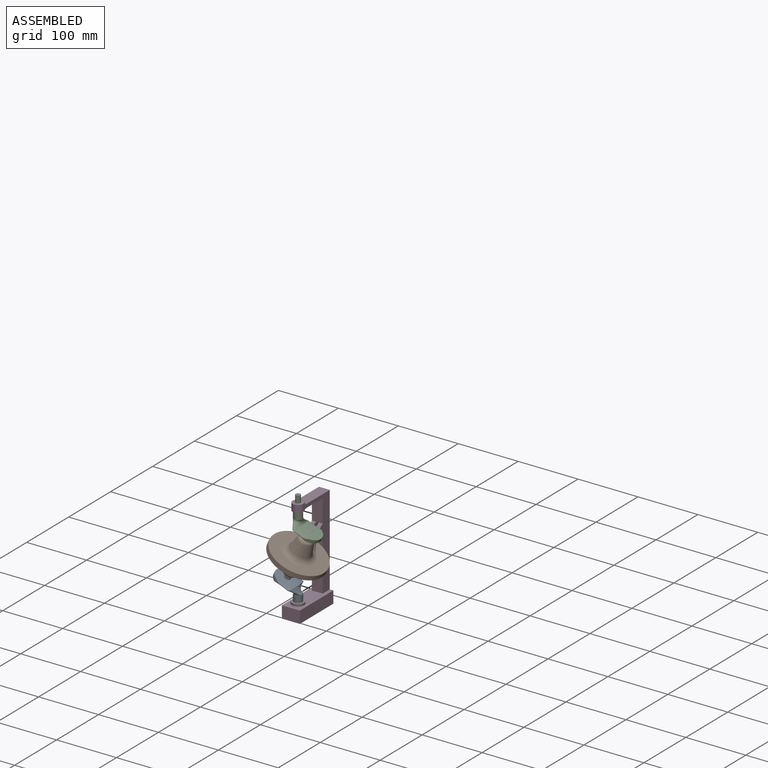
[diagram: assembled view]
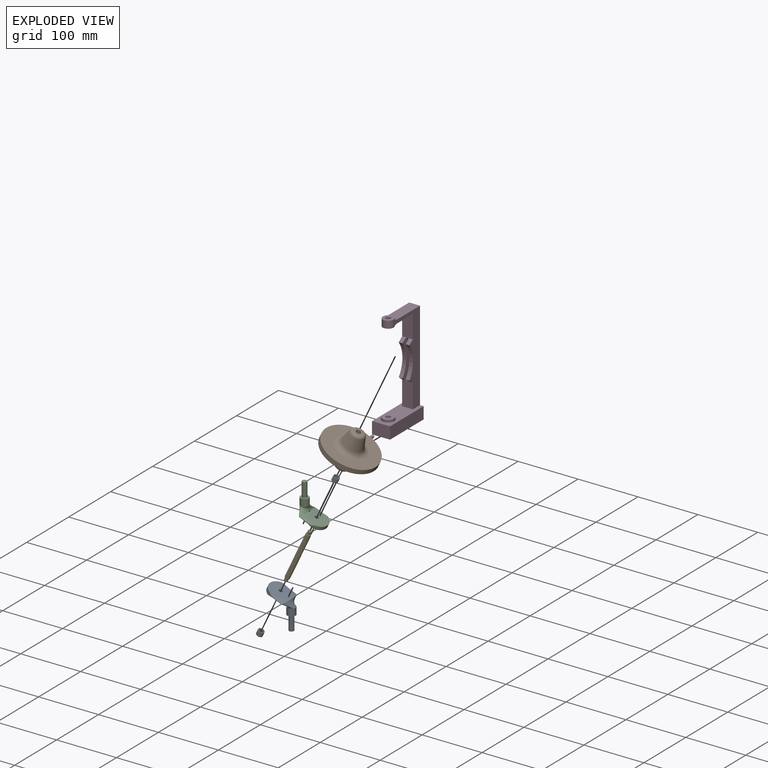
[diagram: exploded view]
GUIDED TOUR — MATED ASSEMBLY (Onshape document 5cff3179f80a41fd244dbe25, AutoMate assembly 5cff3179f80a41fd244dbe25_552df3ba4b13eefe824be8b3_bae44dd0b8cb0038fdf801b5_default)

This assembly has 7 components, labeled P0..P6 below (a component is one placed occurrence of a part; the same part can appear more than once), held together by 6 mates. A mate is a constraint between two components; its type names the relative motion it leaves free:
  REVOLUTE — leaves rotation about the listed axis free (a hinge).
Axis/direction vectors are unit vectors and 'through' points are millimeter coordinates, both in the assembly's world frame.

MATES
  1. REVOLUTE "Animate 720": P0 <-> P3, axis (0.000, 0.000, -1.000) through (23.51, -0.99, -49.84) mm
  2. REVOLUTE "Revolute 5": P5 <-> P4, axis (0.422, 0.015, 0.906) through (40.83, -0.37, 55.65) mm
  3. REVOLUTE "Revolute 2": P4 <-> P2, axis (0.422, 0.015, 0.906) through (40.83, -0.37, 55.65) mm
  4. REVOLUTE "Revolute 4": P6 <-> P4, axis (-0.422, -0.015, -0.906) through (6.28, -1.60, -18.49) mm
  5. REVOLUTE "Revolute 1": P4 <-> P0, axis (-0.422, -0.015, -0.906) through (6.28, -1.60, -18.49) mm
  6. REVOLUTE "Revolute 6": P1 <-> P6, axis (-0.422, -0.015, -0.906) through (9.57, -1.48, -11.42) mm

ASSEMBLY ORDER
  1. P4 — the base component [order heuristic]
  2. P1 — core [order heuristic]
  3. P6 [order verified]
  4. P5 [order verified]
  5. P3 — core [order heuristic]
  6. P0 — core [order heuristic]
  7. P2 — core [order heuristic]
Order-tag legend:
  [order verified] — this step's position reverses a verified removal order: the component was checked to insert without passing through the ones already placed.
  [order heuristic] — the first 5 components form the assembly's core: parts whose collision-free extraction could not be verified, listed in mate-graph order.

Of the 7 components, 3 carry the full construction recipe — the FeatureScript program that regenerates the part's solid from scratch; the rest are supplied as boundary geometry only.
Each toured component is shown spotlighted twice — in the assembled view, then in the exploded view, where a leader line traces a displaced component back to its assembled socket (saturated green if recipe-attached, orange if geometry-only; every other component desaturated gray) — followed by its recipe or geometry summary and the mates that hold it.
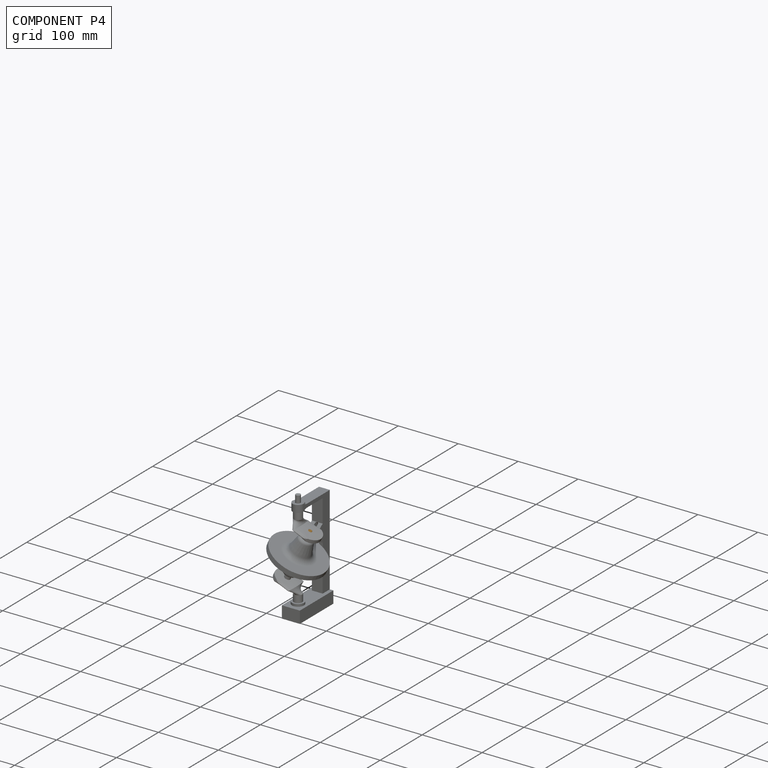
[diagram: component P4 — assembled]
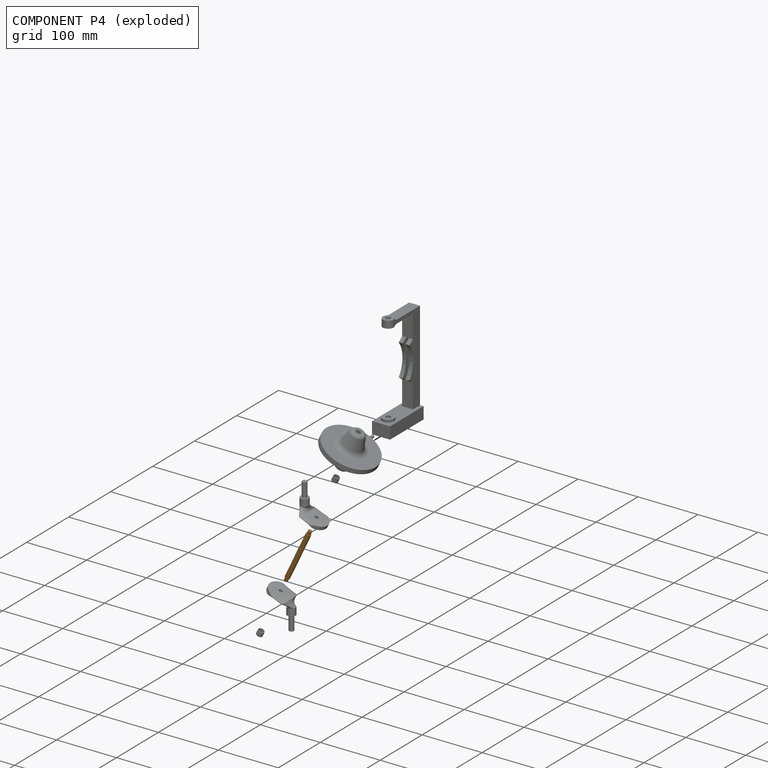
[diagram: component P4 — exploded]
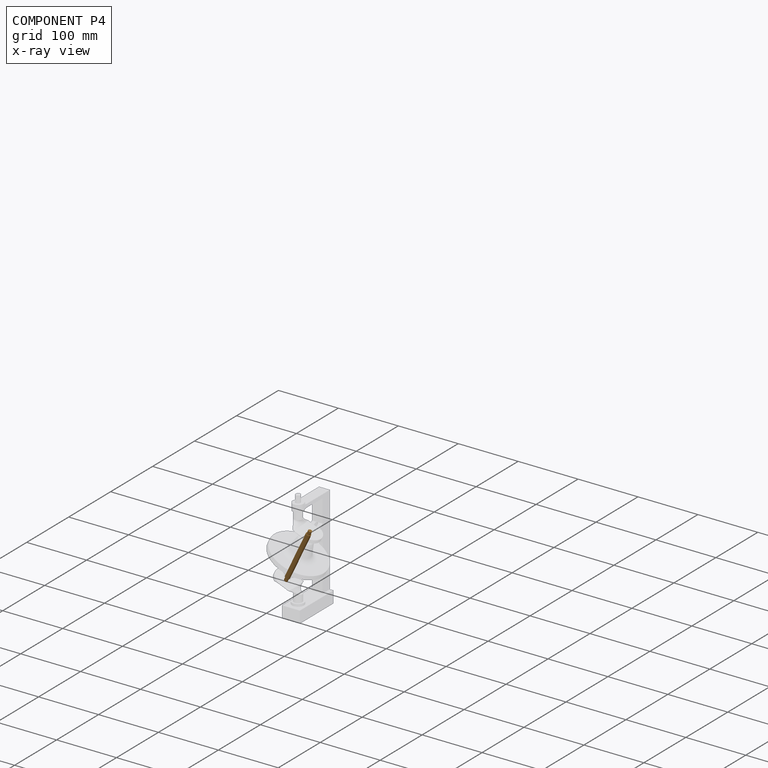
[diagram: component P4 — x-ray view]
COMPONENT P4 — geometry summary (no construction recipe available for this part):
  bounding box: 94.8 x 8.0 x 8.0 mm
  B-rep topology: 1 solid, 9 faces, 30 edges
  volume: 4475 mm^3 (74% of its bounding box)
  symmetry: 2-fold rotationally symmetric about the x axis; revolution-symmetric about the y axis through its bounding-box center; 2-fold rotationally symmetric about the z axis; mirror-symmetric across its x mid-plane, y mid-plane, z mid-plane
Held by: REVOLUTE mate "Revolute 5" to P5; REVOLUTE mate "Revolute 2" to P2; REVOLUTE mate "Revolute 4" to P6; REVOLUTE mate "Revolute 1" to P0.
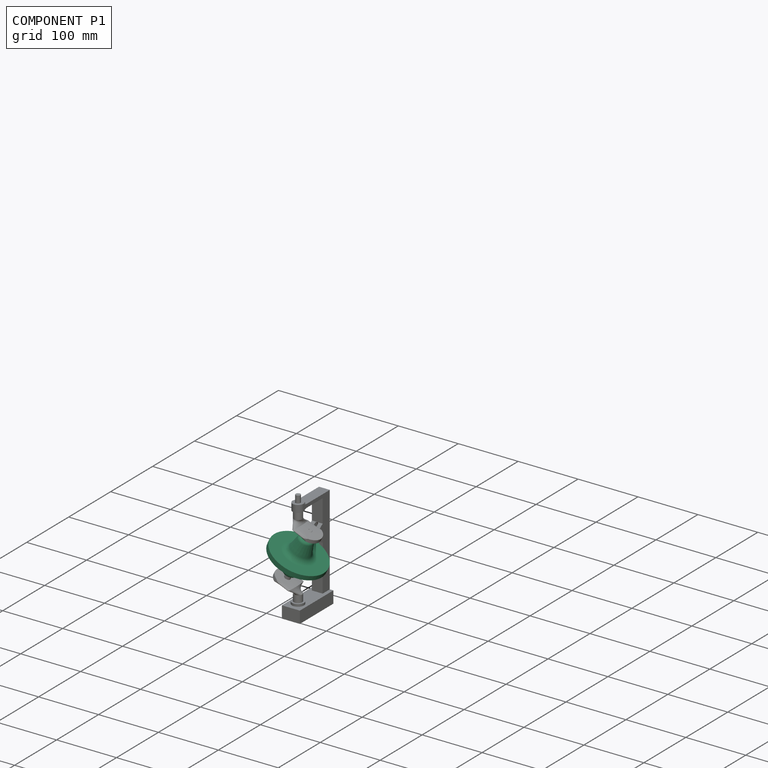
[diagram: component P1 — assembled]
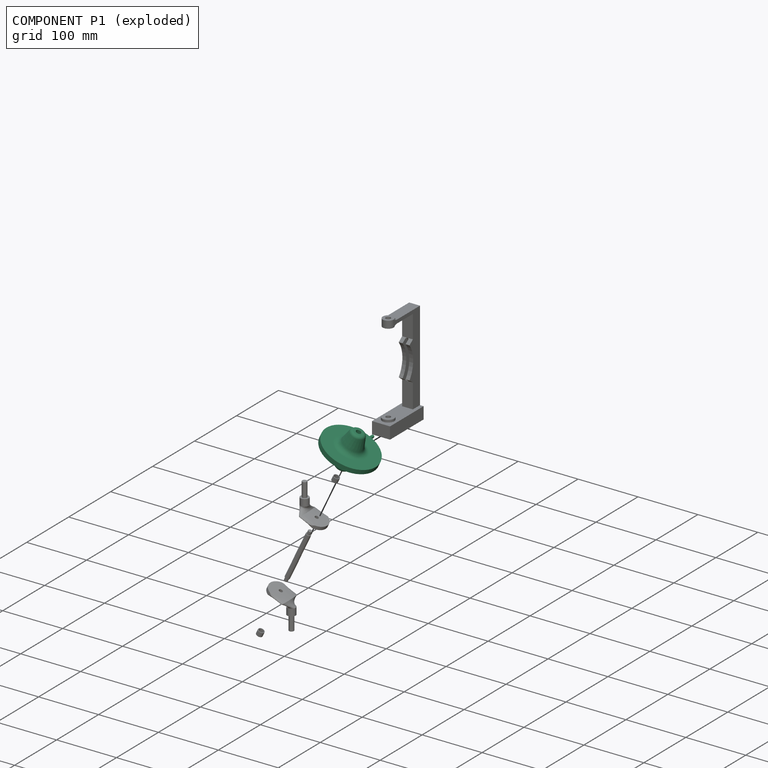
[diagram: component P1 — exploded]
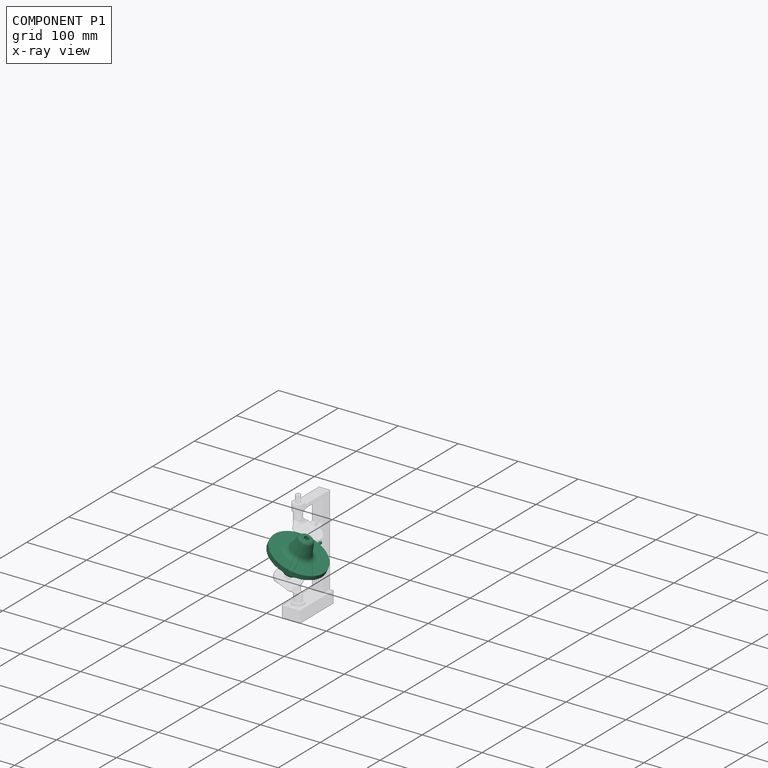
[diagram: component P1 — x-ray view]
COMPONENT P1 — recipe-attached (CADFS 00316515, mesh-verified: the recipe's output STEP matches this component's geometry to below the mesh-comparison resolution (tessellation chordal tolerance ~0.226 mm)).
Held by: REVOLUTE mate "Revolute 6" to P6.
Construction recipe (FeatureScript — the CAD program that rebuilds this solid; sketch coordinates are in the units given by the * unit suffixes, e.g. mm):

FeatureScript 1511;
import(path : "onshape/std/geometry.fs", version : "1511.0");
import(path : "onshape/std/common.fs", version : "1511.0");
const mm = millimeter;
const VERTEX = EntityType.VERTEX;
const EDGE = EntityType.EDGE;
const FACE = EntityType.FACE;
const BODY = EntityType.BODY;
function v(x, y){return vector(x, y);}
function OD(order){return orderDisambiguation(order);}
function OSD(set){return originalSetDisambiguation(set);}
function TD(topology){return topologyDisambiguation(topology);}
function TDD(query){return trueDependencyDisambiguation(query);}
function sQuery(a, b, c) {return sketchEntityQuery(a, b, c);}

annotation { "Feature Type Name" : "Feature", "Feature Type Description" : "" }
export const myFeature = defineFeature(function(context is Context, id is Id, definition is map)
    precondition{}
    {
        {
            var Q0;
            Q0=qCreatedBy(makeId("Right.planeOp"),FACE);
            var sketch = newSketch(context, id + "F0", { "sketchPlane" : qUnion([Q0])});
            skLineSegment(sketch, "E0", {"start": v(-44.32, 0) * mm, "end": v(43.47, 0) * mm, "construction": true});
            skLineSegment(sketch, "E1", {"start": v(0, 43.68) * mm, "end": v(0, -43.47) * mm, "construction": true});
            skLineSegment(sketch, "E2", {"start": v(-45, 0) * mm, "end": v(-45, 4) * mm});
            skLineSegment(sketch, "E3", {"start": v(-45, 4) * mm, "end": v(-26.5, 4) * mm});
            skLineSegment(sketch, "E4", {"start": v(-12, 29.5) * mm, "end": v(-16.84, 11.41) * mm});
            skPoint(sketch, "E5.visualSharp", {"position": v(-18.82, 4) * mm});
            skArc(sketch, "E5.filletArc", {"start": v(-26.5, 4) * mm, "mid": v(-20.4, 6.07) * mm, "end": v(-16.84, 11.41) * mm});
            skPoint(sketch, "E6.visualSharp", {"position": v(-11, 33.2) * mm});
            skArc(sketch, "E6.filletArc", {"start": v(-7.16, 33.2) * mm, "mid": v(-10.2, 32.17) * mm, "end": v(-12, 29.5) * mm});
            skLineSegment(sketch, "E7", {"start": v(-7.16, 33.2) * mm, "end": v(-4, 33.2) * mm});
            skLineSegment(sketch, "E8.MirrorCS", {"start": v(-7.16, -33.2) * mm, "end": v(-4, -33.2) * mm});
            skArc(sketch, "E9.MirrorCS", {"start": v(-7.16, -33.2) * mm, "mid": v(-10.2, -32.17) * mm, "end": v(-12, -29.5) * mm});
            skLineSegment(sketch, "E10.MirrorCS", {"start": v(-12, -29.5) * mm, "end": v(-16.84, -11.41) * mm});
            skArc(sketch, "E11.MirrorCS", {"start": v(-26.5, -4) * mm, "mid": v(-20.4, -6.07) * mm, "end": v(-16.84, -11.41) * mm});
            skLineSegment(sketch, "E12.MirrorCS", {"start": v(-45, -4) * mm, "end": v(-26.5, -4) * mm});
            skLineSegment(sketch, "E13.MirrorCS", {"start": v(-45, 0) * mm, "end": v(-45, -4) * mm});
            skLineSegment(sketch, "E14", {"start": v(-4, 33.2) * mm, "end": v(-4, -33.2) * mm});
            skSolve(sketch);
        }
        {
            var Q0;
            Q0=makeQuery(id+"F0.imprint","IMPRINT",FACE,{"disambiguationData":[TD([[makeQuery(id+"F0.imprint","IMPRINT",EDGE,{"derivedFrom":sQuery(id+"F0.wireOp",EDGE,"E2")}),-1.0]])]});
            var Q1;
            Q1=sQuery(id+"F0.wireOp",EDGE,"E1");
            revolve(context, id + "F1", {"entities" : qUnion([Q0]), "axis" : qUnion([Q1]), "revolveType" : RevolveType.FULL});
        }
        {
            var Q0;
            Q0=qCreatedBy(makeId("Right.planeOp"),FACE);
            var sketch = newSketch(context, id + "F2", { "sketchPlane" : qUnion([Q0])});
            skLineSegment(sketch, "E15.bottom", {"start": v(40.3, 2.5) * mm, "end": v(56, 2.5) * mm});
            skLineSegment(sketch, "E15.top", {"start": v(40.3, 0) * mm, "end": v(56, 0) * mm});
            skLineSegment(sketch, "E15.left", {"start": v(40.3, 2.5) * mm, "end": v(40.3, 0) * mm});
            skLineSegment(sketch, "E15.right", {"start": v(56, 2.5) * mm, "end": v(56, 0) * mm});
            skSolve(sketch);
        }
        {
            var Q0;
            Q0=makeQuery(id+"F2.imprint","IMPRINT",FACE,{"disambiguationData":[TD([[makeQuery(id+"F2.imprint","IMPRINT",EDGE,{"derivedFrom":sQuery(id+"F2.wireOp",EDGE,"E15.bottom")}),-1.0]])]});
            var Q1;
            Q1=sQuery(id+"F2.wireOp",EDGE,"E15.top");
            revolve(context, id + "F3", {"operationType" : NewBodyOperationType.ADD, "entities" : qUnion([Q0]), "axis" : qUnion([Q1]), "revolveType" : RevolveType.FULL});
        }
        {
            var Q0;
            Q0=makeQuery(id+"F3.opRevolve","SWEPT_EDGE",EDGE,{"disambiguationData":[OSD([sQuery(id+"F2.wireOp",EDGE,"E15.bottom"),sQuery(id+"F2.wireOp",EDGE,"E15.right")])]});
            fillet(context, id + "F4", {"entities" : qUnion([Q0]), "radius" : 2.5 * mm, "tangentPropagation" : true, "allowEdgeOverflow" : false});
        }
    });
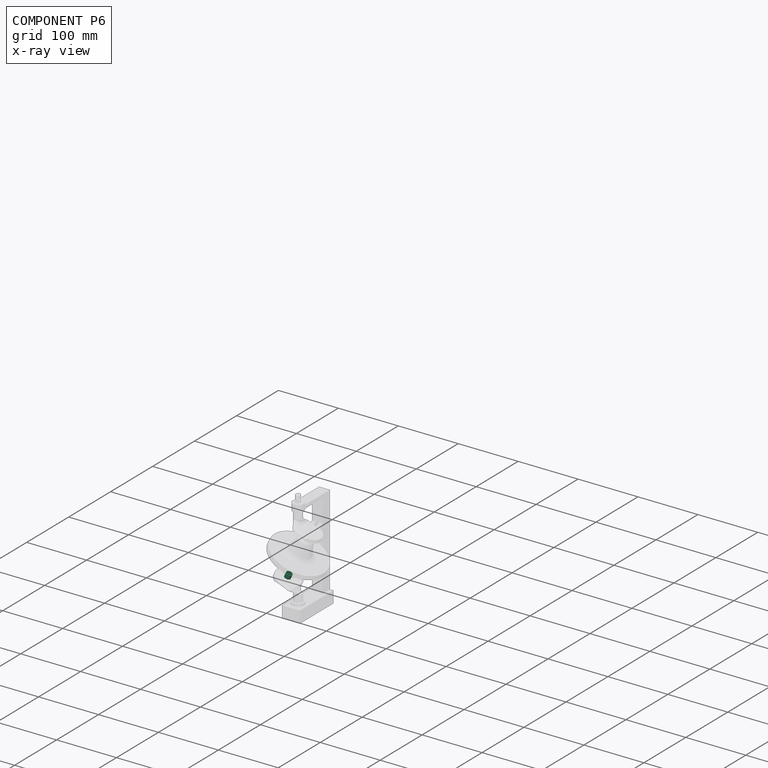
[diagram: component P6 — x-ray view]
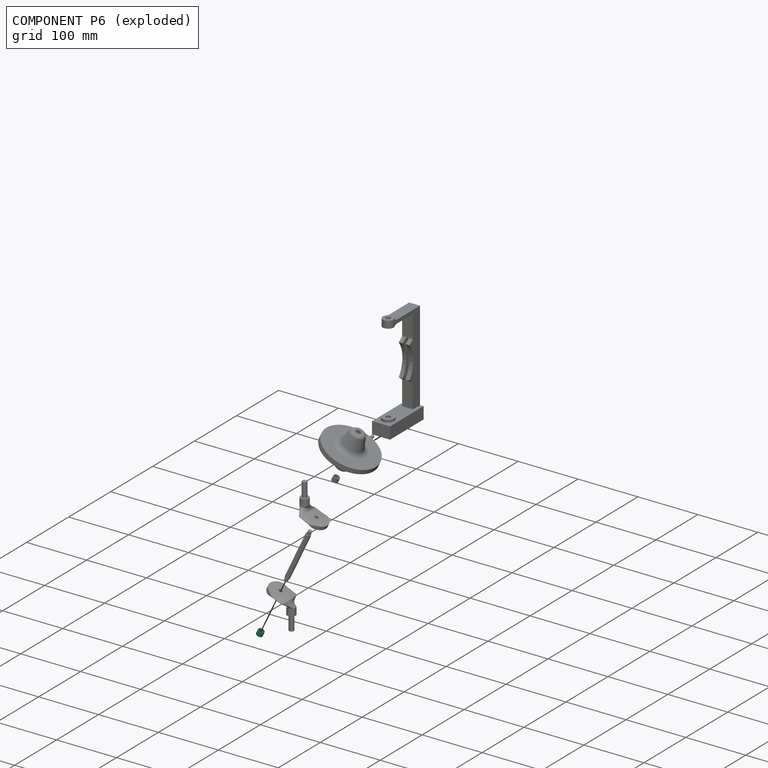
[diagram: component P6 — exploded]
COMPONENT P6 — same part as P5 (CADFS 00316518); its construction recipe is shown at P5.
Held by: REVOLUTE mate "Revolute 4" to P4; REVOLUTE mate "Revolute 6" to P1.
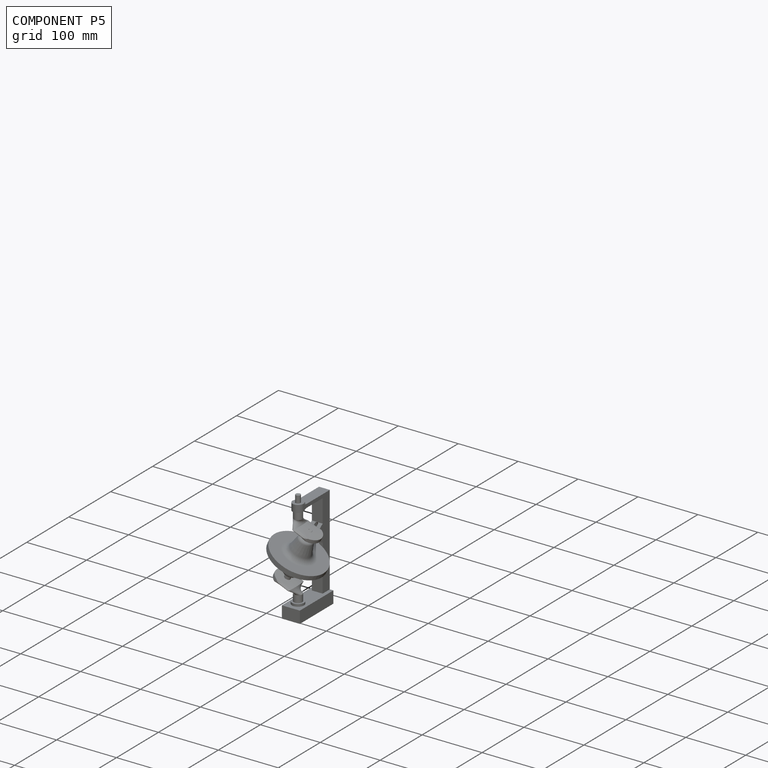
[diagram: component P5 — assembled]
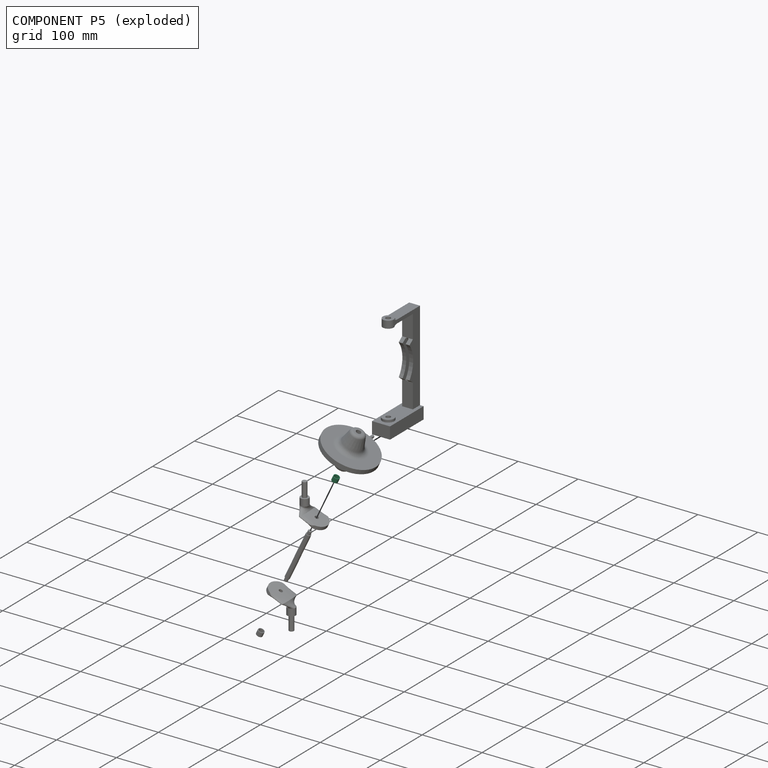
[diagram: component P5 — exploded]
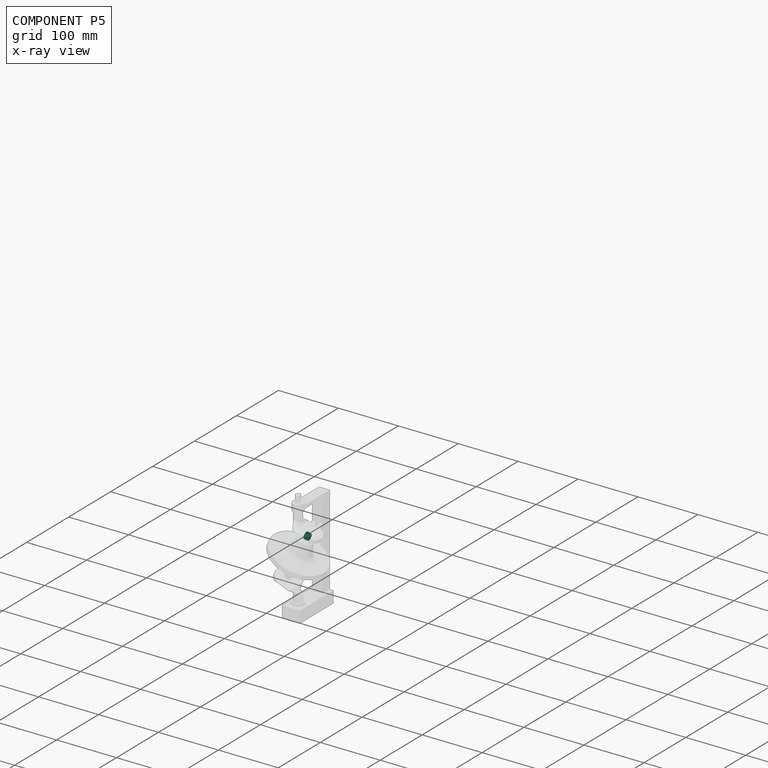
[diagram: component P5 — x-ray view]
COMPONENT P5 — recipe-attached (CADFS 00316518, mesh-verified: the recipe's output STEP matches this component's geometry to below the mesh-comparison resolution (tessellation chordal tolerance ~0.0242 mm)).
Held by: REVOLUTE mate "Revolute 5" to P4.
Construction recipe (FeatureScript — the CAD program that rebuilds this solid; sketch coordinates are in the units given by the * unit suffixes, e.g. mm):

FeatureScript 1511;
import(path : "onshape/std/geometry.fs", version : "1511.0");
import(path : "onshape/std/common.fs", version : "1511.0");
const mm = millimeter;
const VERTEX = EntityType.VERTEX;
const EDGE = EntityType.EDGE;
const FACE = EntityType.FACE;
const BODY = EntityType.BODY;
function v(x, y){return vector(x, y);}
function OD(order){return orderDisambiguation(order);}
function OSD(set){return originalSetDisambiguation(set);}
function TD(topology){return topologyDisambiguation(topology);}
function TDD(query){return trueDependencyDisambiguation(query);}
function sQuery(a, b, c) {return sketchEntityQuery(a, b, c);}

annotation { "Feature Type Name" : "Feature", "Feature Type Description" : "" }
export const myFeature = defineFeature(function(context is Context, id is Id, definition is map)
    precondition{}
    {
        {
            var Q0;
            Q0=qCreatedBy(makeId("Top.planeOp"),FACE);
            var sketch = newSketch(context, id + "F0", { "sketchPlane" : qUnion([Q0])});
            skCircle(sketch, "E0", {"center": v(0, 0) * mm, "radius": 4 * mm});
            skCircle(sketch, "E1", {"center": v(0, 0) * mm, "radius": 5 * mm});
            skSolve(sketch);
        }
        {
            var Q0;
            Q0=makeQuery(id+"F0.imprint","IMPRINT",FACE,{"disambiguationData":[TD([[makeQuery(id+"F0.imprint","IMPRINT",EDGE,{"derivedFrom":sQuery(id+"F0.wireOp",EDGE,"E0")}),-1.0]])]});
            extrude(context, id + "F1", {"entities" : qUnion([Q0]), "endBound" : BoundingType.SYMMETRIC, "oppositeDirection" : true, "depth" : 7.8 * mm});
        }
    });
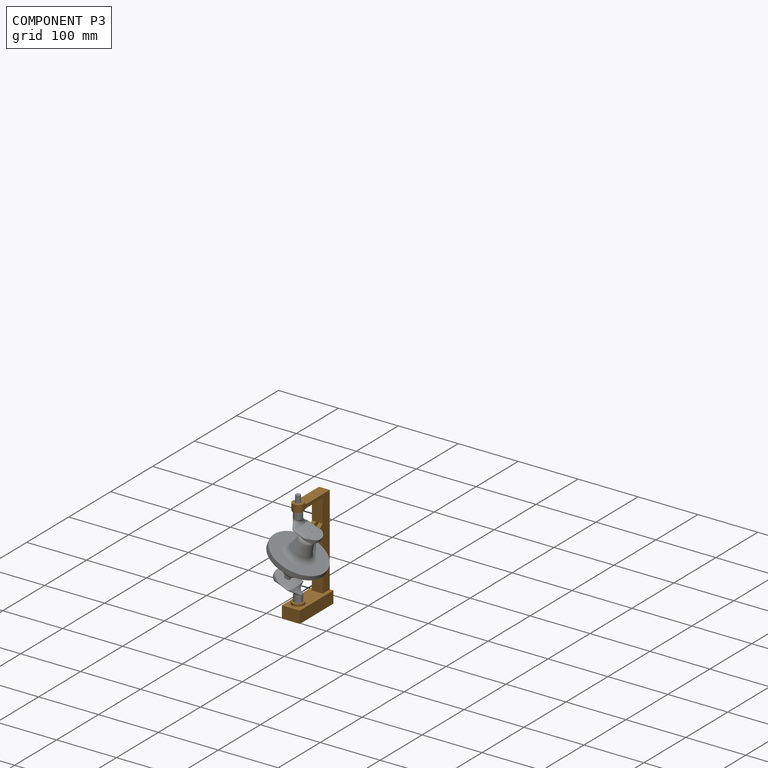
[diagram: component P3 — assembled]
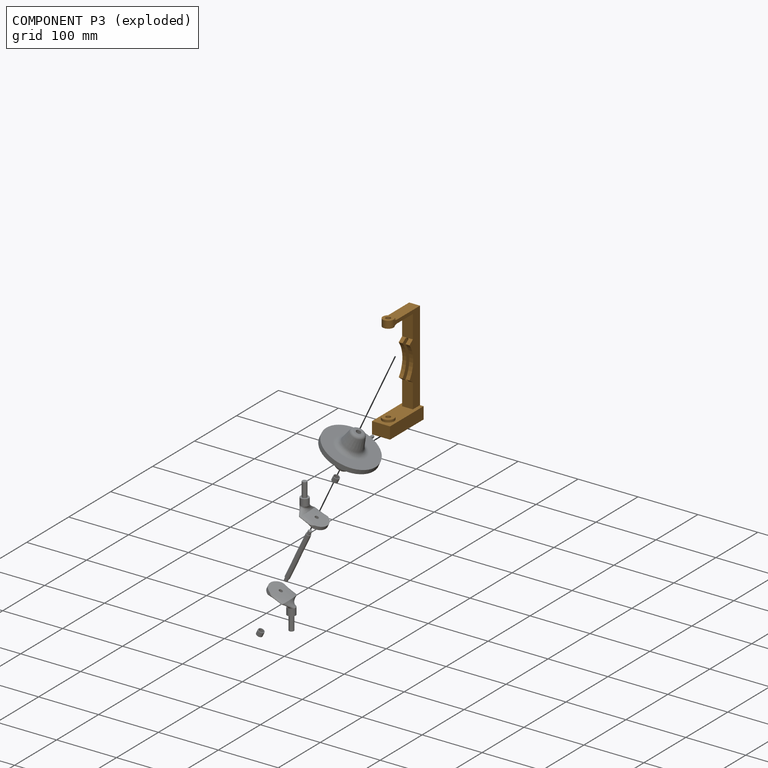
[diagram: component P3 — exploded]
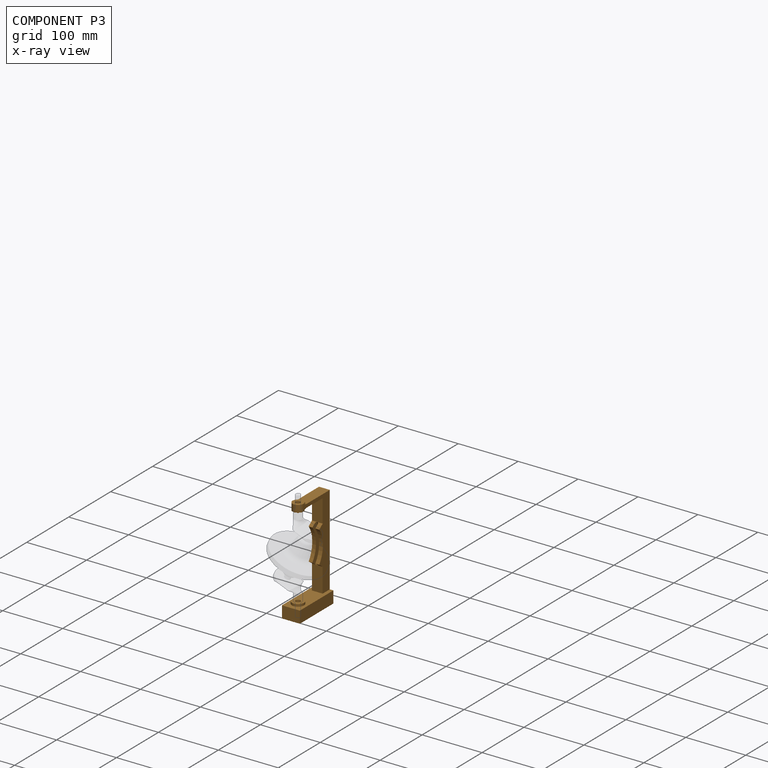
[diagram: component P3 — x-ray view]
COMPONENT P3 — geometry summary (no construction recipe available for this part):
  bounding box: 175.1 x 80.0 x 30.6 mm
  B-rep topology: 1 solid, 30 faces, 152 edges
  volume: 100539 mm^3 (23% of its bounding box)
  symmetry: mirror-symmetric across its x mid-plane
Held by: REVOLUTE mate "Animate 720" to P0.
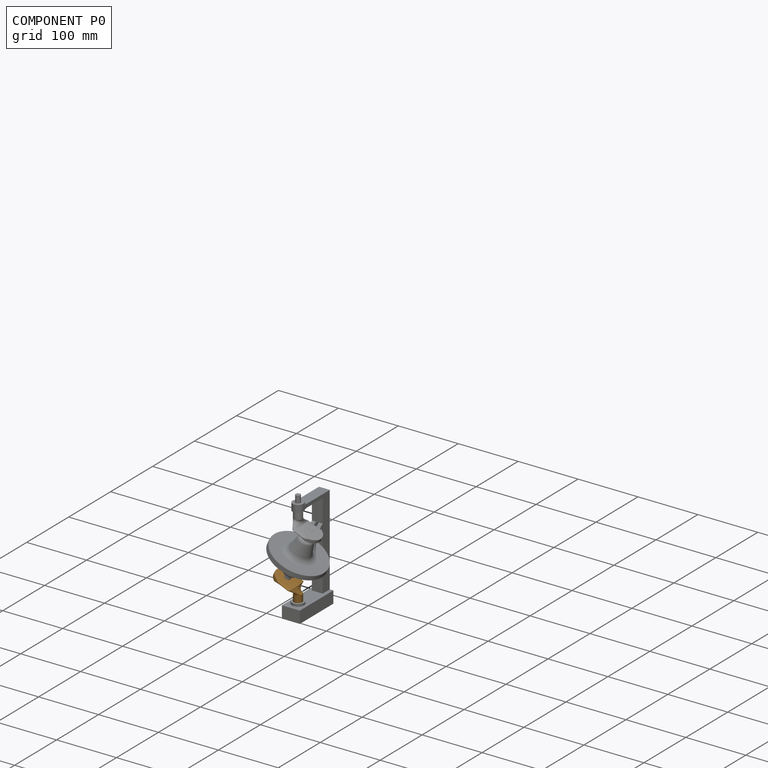
[diagram: component P0 — assembled]
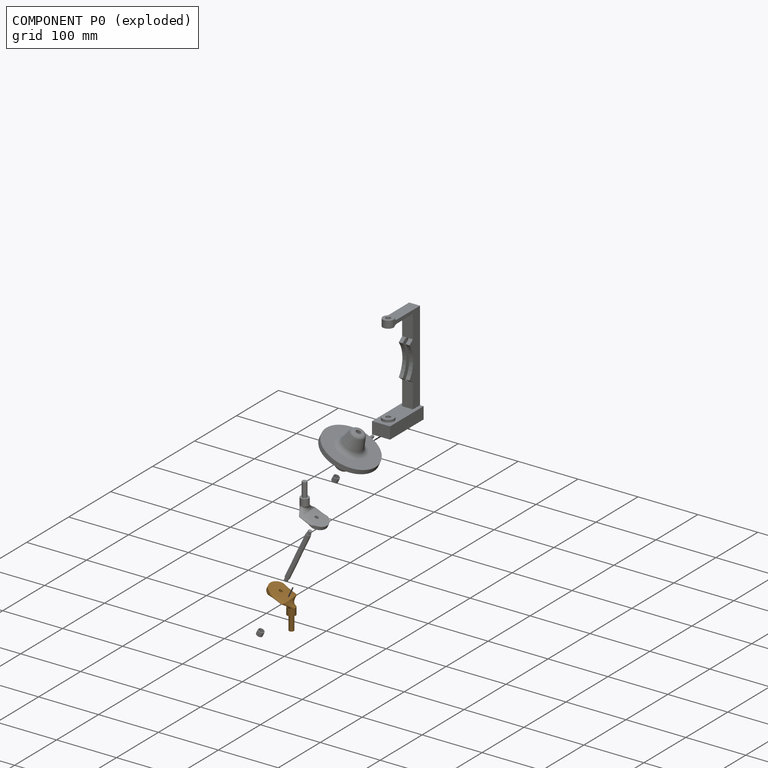
[diagram: component P0 — exploded]
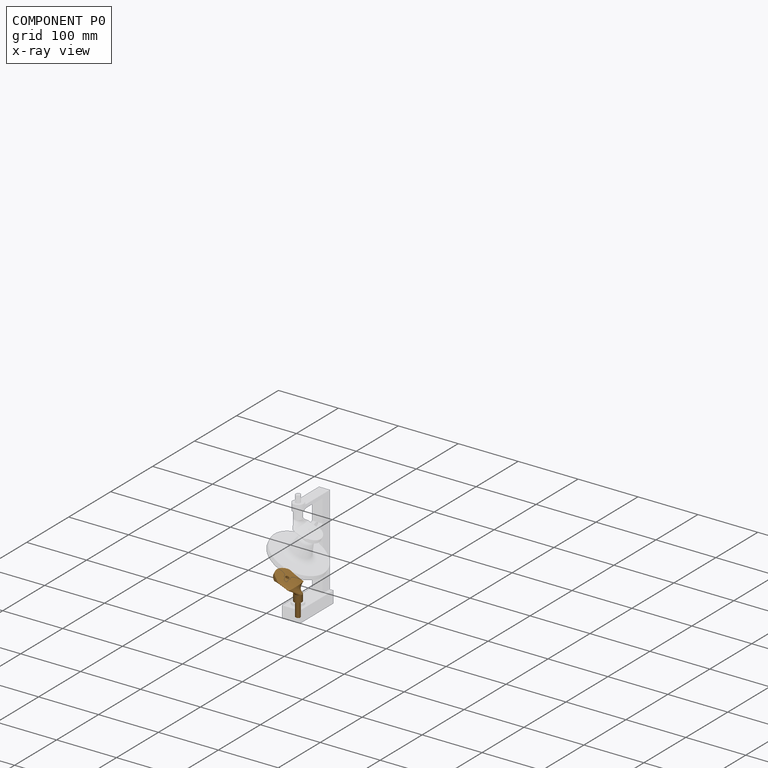
[diagram: component P0 — x-ray view]
COMPONENT P0 — geometry summary (no construction recipe available for this part):
  bounding box: 63.4 x 44.1 x 38.0 mm
  B-rep topology: 1 solid, 13 faces, 78 edges
  volume: 11093 mm^3 (10% of its bounding box)
Held by: REVOLUTE mate "Animate 720" to P3; REVOLUTE mate "Revolute 1" to P4.
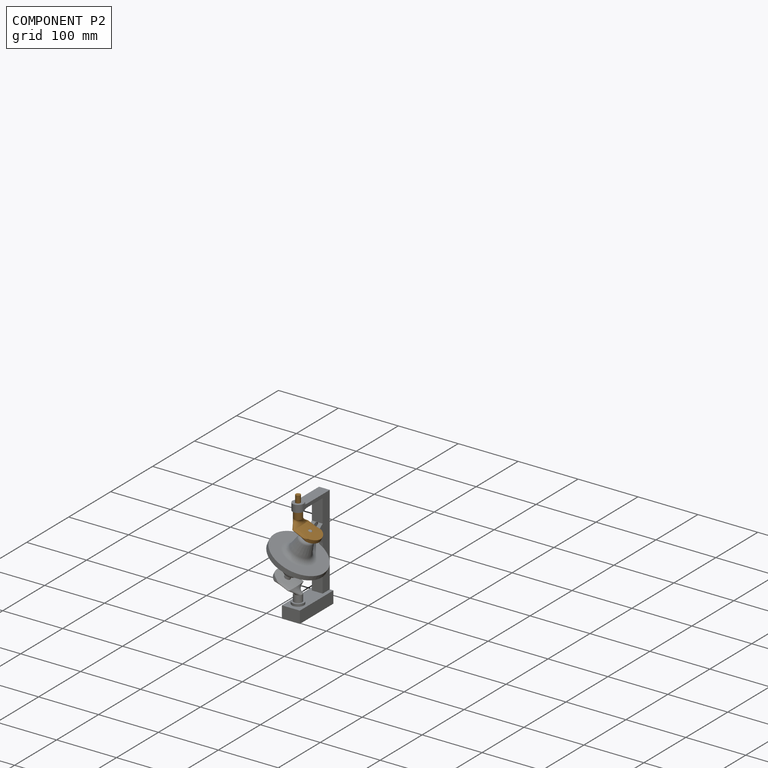
[diagram: component P2 — assembled]
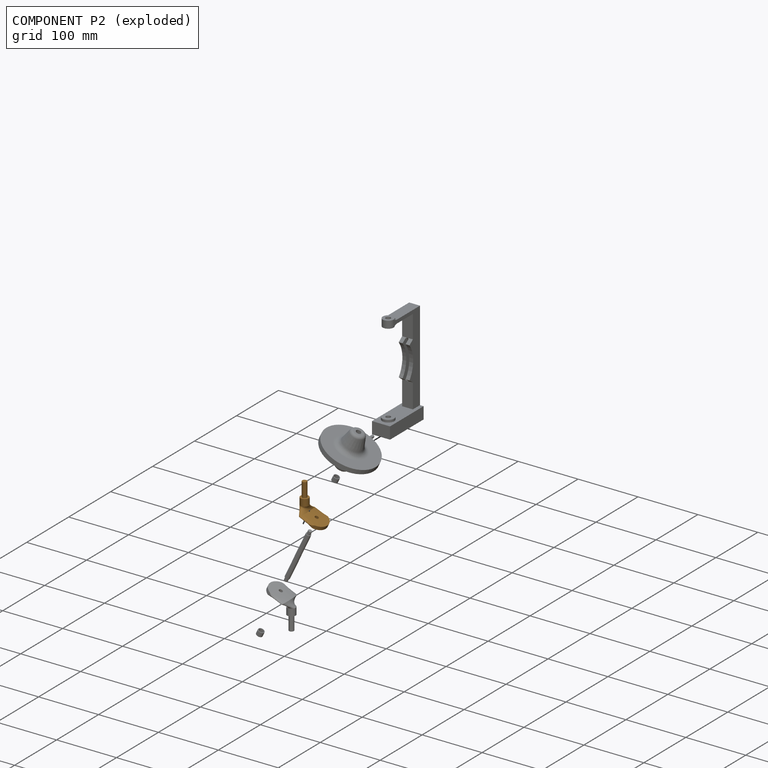
[diagram: component P2 — exploded]
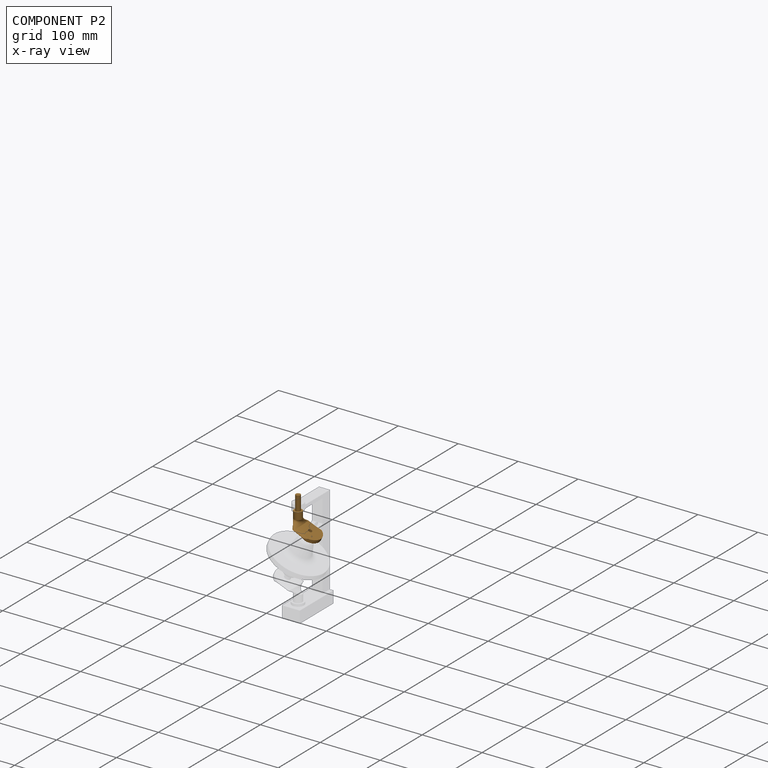
[diagram: component P2 — x-ray view]
COMPONENT P2 — geometry summary (no construction recipe available for this part):
  bounding box: 63.4 x 44.1 x 38.0 mm
  B-rep topology: 1 solid, 13 faces, 78 edges
  volume: 11093 mm^3 (10% of its bounding box)
Held by: REVOLUTE mate "Revolute 2" to P4.
PROVENANCE & LICENSES
Assembly (occurrences, transforms, mates, per-part STEP geometry): AutoMate dataset, Zenodo record 7776208, CC0.
Construction recipes: CADFS (HuggingFace VladPyatov/CADFS, CC-BY-4.0, layered over the ABC dataset), FeatureScript reconstruction programs keyed by ABC model id.
Join: ABC meta listings map ABC model id -> Onshape documentId; within a shared document, parts are matched by geometric signature (bounding-box dims + volume at 0.1% relative tolerance, exact B-rep face/solid counts).
Verification: 3 of this assembly's 7 components carry a recipe attachment, and every attachment is mesh-verified: the CADFS STEP and the AutoMate member STEP were compared as meshes in their shared local frame (symmetric sampled-point-to-mesh distance); worst across the 3 attachments: below the mesh-comparison resolution (tessellation chordal tolerance ~0.226 mm) on a 151 mm part.
Renders: orthographic iso camera (az 35 / el 25); the floor grid conveys scale (grid pitch printed in each image; no ruler). In the exploded view each component is displaced by its stored offset vector: the offsets alone carry the explosion direction (mate normal/axis signs are not orientation cues and do not encode it), and separation distances are assigned per mate-chain, not proportionally to assembly-order depth.
